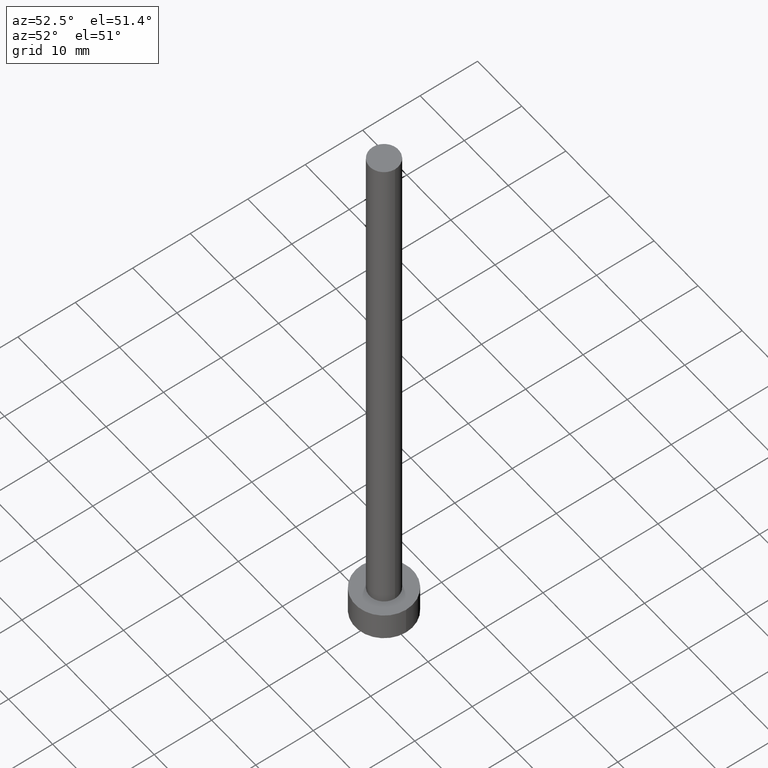
[diagram: clean part render]
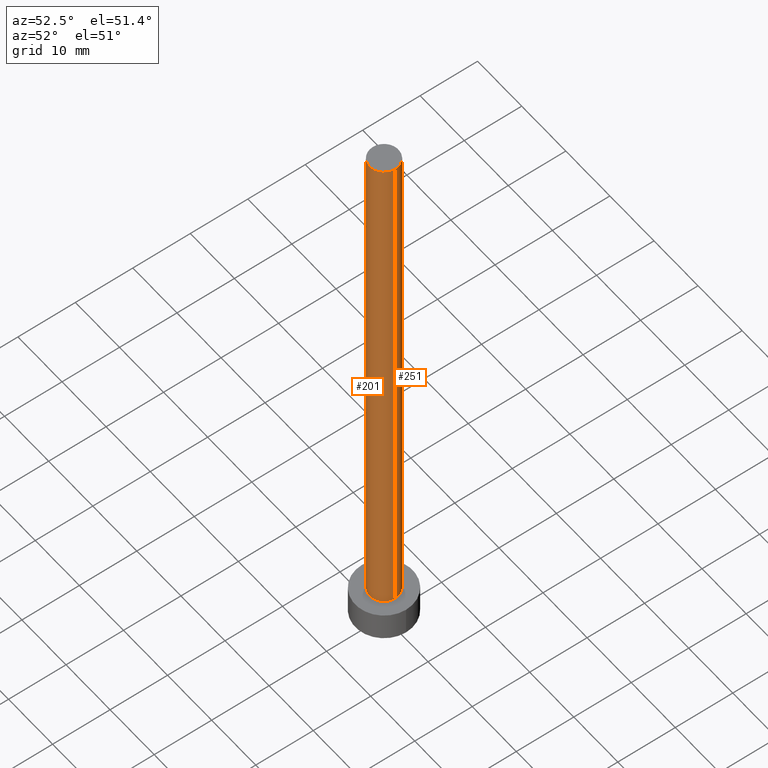
[diagram: same view with one multi-face feature highlighted, each face labeled with its STEP entity id]
A machine part, auxiliary view. The highlighted faces form ONE feature: a constant-radius fillet chain: 2 tangent blend faces with common blend radius 2.5 mm. The faces share edges in the B-rep.
Their STEP definitions:
[1] entity #251 (Cylinder):
#4 = CYLINDRICAL_SURFACE ( 'NONE', #29, 2.500000000000000000 ) ;
#6 = CARTESIAN_POINT ( 'NONE',  ( 2.500000000000000000, 3.061616997868383141E-16, 100.0000000000000000 ) ) ;
#16 = ORIENTED_EDGE ( 'NONE', *, *, #114, .F. ) ;
#18 = EDGE_CURVE ( 'NONE', #60, #133, #222, .T. ) ;
#22 = EDGE_CURVE ( 'NONE', #133, #212, #195, .T. ) ;
#26 = CARTESIAN_POINT ( 'NONE',  ( 0.000000000000000000, 0.000000000000000000, 100.0000000000000000 ) ) ;
#29 = AXIS2_PLACEMENT_3D ( 'NONE', #61, #36, #140 ) ;
#33 = CIRCLE ( 'NONE', #147, 2.500000000000000000 ) ;
#36 = DIRECTION ( 'NONE',  ( -0.000000000000000000, -0.000000000000000000, -1.000000000000000000 ) ) ;
#60 = VERTEX_POINT ( 'NONE', #252 ) ;
#61 = CARTESIAN_POINT ( 'NONE',  ( 0.000000000000000000, 0.000000000000000000, 100.0000000000000000 ) ) ;
#62 = ORIENTED_EDGE ( 'NONE', *, *, #22, .T. ) ;
#71 = CARTESIAN_POINT ( 'NONE',  ( -2.500000000000000000, 0.000000000000000000, 100.0000000000000000 ) ) ;
#73 = VECTOR ( 'NONE', #211, 1000.000000000000000 ) ;
#79 = ORIENTED_EDGE ( 'NONE', *, *, #18, .T. ) ;
#84 = DIRECTION ( 'NONE',  ( -0.000000000000000000, -0.000000000000000000, -1.000000000000000000 ) ) ;
#92 = CARTESIAN_POINT ( 'NONE',  ( -2.500000000000000000, 0.000000000000000000, 100.0000000000000000 ) ) ;
#103 = EDGE_CURVE ( 'NONE', #194, #212, #188, .T. ) ;
#106 = VECTOR ( 'NONE', #84, 1000.000000000000000 ) ;
#114 = EDGE_CURVE ( 'NONE', #60, #194, #33, .T. ) ;
#127 = CARTESIAN_POINT ( 'NONE',  ( 2.500000000000000000, 3.061616997868383141E-16, 5.000000000000000000 ) ) ;
#131 = ORIENTED_EDGE ( 'NONE', *, *, #103, .F. ) ;
#133 = VERTEX_POINT ( 'NONE', #127 ) ;
#138 = EDGE_LOOP ( 'NONE', ( #16, #79, #62, #131 ) ) ;
#140 = DIRECTION ( 'NONE',  ( -1.000000000000000000, 0.000000000000000000, 0.000000000000000000 ) ) ;
#147 = AXIS2_PLACEMENT_3D ( 'NONE', #26, #231, #172 ) ;
#163 = DIRECTION ( 'NONE',  ( 0.000000000000000000, 0.000000000000000000, 1.000000000000000000 ) ) ;
#172 = DIRECTION ( 'NONE',  ( 1.000000000000000000, 0.000000000000000000, 0.000000000000000000 ) ) ;
#183 = CARTESIAN_POINT ( 'NONE',  ( 0.000000000000000000, 0.000000000000000000, 5.000000000000000000 ) ) ;
#188 = LINE ( 'NONE', #92, #73 ) ;
#194 = VERTEX_POINT ( 'NONE', #71 ) ;
#195 = CIRCLE ( 'NONE', #206, 2.500000000000000000 ) ;
#206 = AXIS2_PLACEMENT_3D ( 'NONE', #183, #163, #247 ) ;
#211 = DIRECTION ( 'NONE',  ( -0.000000000000000000, -0.000000000000000000, -1.000000000000000000 ) ) ;
#212 = VERTEX_POINT ( 'NONE', #234 ) ;
#222 = LINE ( 'NONE', #6, #106 ) ;
#231 = DIRECTION ( 'NONE',  ( 0.000000000000000000, 0.000000000000000000, 1.000000000000000000 ) ) ;
#234 = CARTESIAN_POINT ( 'NONE',  ( -2.500000000000000000, 0.000000000000000000, 5.000000000000000000 ) ) ;
#246 = FACE_OUTER_BOUND ( 'NONE', #138, .T. ) ;
#247 = DIRECTION ( 'NONE',  ( 1.000000000000000000, 0.000000000000000000, 0.000000000000000000 ) ) ;
#251 = ADVANCED_FACE ( 'NONE', ( #246 ), #4, .T. ) ;
#252 = CARTESIAN_POINT ( 'NONE',  ( 2.500000000000000000, 3.061616997868383141E-16, 100.0000000000000000 ) ) ;
[2] entity #201 (Cylinder):
#6 = CARTESIAN_POINT ( 'NONE',  ( 2.500000000000000000, 3.061616997868383141E-16, 100.0000000000000000 ) ) ;
#11 = DIRECTION ( 'NONE',  ( 1.000000000000000000, 0.000000000000000000, 0.000000000000000000 ) ) ;
#18 = EDGE_CURVE ( 'NONE', #60, #133, #222, .T. ) ;
#30 = DIRECTION ( 'NONE',  ( 0.000000000000000000, 0.000000000000000000, 1.000000000000000000 ) ) ;
#32 = CYLINDRICAL_SURFACE ( 'NONE', #128, 2.500000000000000000 ) ;
#35 = ORIENTED_EDGE ( 'NONE', *, *, #18, .F. ) ;
#57 = ORIENTED_EDGE ( 'NONE', *, *, #120, .F. ) ;
#60 = VERTEX_POINT ( 'NONE', #252 ) ;
#67 = CARTESIAN_POINT ( 'NONE',  ( 0.000000000000000000, 0.000000000000000000, 100.0000000000000000 ) ) ;
#71 = CARTESIAN_POINT ( 'NONE',  ( -2.500000000000000000, 0.000000000000000000, 100.0000000000000000 ) ) ;
#73 = VECTOR ( 'NONE', #211, 1000.000000000000000 ) ;
#84 = DIRECTION ( 'NONE',  ( -0.000000000000000000, -0.000000000000000000, -1.000000000000000000 ) ) ;
#89 = AXIS2_PLACEMENT_3D ( 'NONE', #67, #30, #11 ) ;
#90 = DIRECTION ( 'NONE',  ( -1.000000000000000000, 0.000000000000000000, 0.000000000000000000 ) ) ;
#92 = CARTESIAN_POINT ( 'NONE',  ( -2.500000000000000000, 0.000000000000000000, 100.0000000000000000 ) ) ;
#100 = CIRCLE ( 'NONE', #189, 2.500000000000000000 ) ;
#103 = EDGE_CURVE ( 'NONE', #194, #212, #188, .T. ) ;
#106 = VECTOR ( 'NONE', #84, 1000.000000000000000 ) ;
#120 = EDGE_CURVE ( 'NONE', #194, #60, #181, .T. ) ;
#127 = CARTESIAN_POINT ( 'NONE',  ( 2.500000000000000000, 3.061616997868383141E-16, 5.000000000000000000 ) ) ;
#128 = AXIS2_PLACEMENT_3D ( 'NONE', #238, #152, #90 ) ;
#133 = VERTEX_POINT ( 'NONE', #127 ) ;
#143 = ORIENTED_EDGE ( 'NONE', *, *, #176, .T. ) ;
#148 = FACE_OUTER_BOUND ( 'NONE', #173, .T. ) ;
#150 = DIRECTION ( 'NONE',  ( 1.000000000000000000, 0.000000000000000000, 0.000000000000000000 ) ) ;
#152 = DIRECTION ( 'NONE',  ( -0.000000000000000000, -0.000000000000000000, -1.000000000000000000 ) ) ;
#173 = EDGE_LOOP ( 'NONE', ( #35, #57, #240, #143 ) ) ;
#176 = EDGE_CURVE ( 'NONE', #212, #133, #100, .T. ) ;
#181 = CIRCLE ( 'NONE', #89, 2.500000000000000000 ) ;
#188 = LINE ( 'NONE', #92, #73 ) ;
#189 = AXIS2_PLACEMENT_3D ( 'NONE', #255, #235, #150 ) ;
#194 = VERTEX_POINT ( 'NONE', #71 ) ;
#201 = ADVANCED_FACE ( 'NONE', ( #148 ), #32, .T. ) ;
#211 = DIRECTION ( 'NONE',  ( -0.000000000000000000, -0.000000000000000000, -1.000000000000000000 ) ) ;
#212 = VERTEX_POINT ( 'NONE', #234 ) ;
#222 = LINE ( 'NONE', #6, #106 ) ;
#234 = CARTESIAN_POINT ( 'NONE',  ( -2.500000000000000000, 0.000000000000000000, 5.000000000000000000 ) ) ;
#235 = DIRECTION ( 'NONE',  ( 0.000000000000000000, 0.000000000000000000, 1.000000000000000000 ) ) ;
#238 = CARTESIAN_POINT ( 'NONE',  ( 0.000000000000000000, 0.000000000000000000, 100.0000000000000000 ) ) ;
#240 = ORIENTED_EDGE ( 'NONE', *, *, #103, .T. ) ;
#252 = CARTESIAN_POINT ( 'NONE',  ( 2.500000000000000000, 3.061616997868383141E-16, 100.0000000000000000 ) ) ;
#255 = CARTESIAN_POINT ( 'NONE',  ( 0.000000000000000000, 0.000000000000000000, 5.000000000000000000 ) ) ;